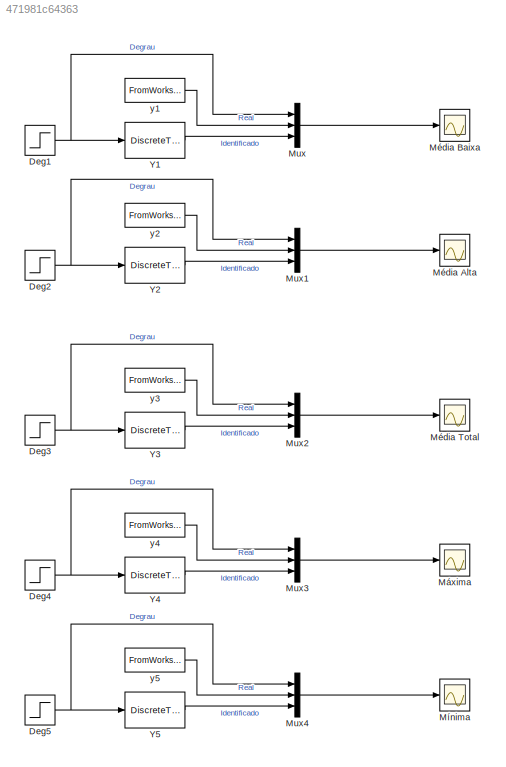
MODEL slx_471981c64363
KIND model
CONFIG AbsTol = auto
CONFIG FixedStep = auto
CONFIG MaxStep = auto
CONFIG MinStep = auto
CONFIG RelTol = 1e-3
CONFIG SampleTimeConstraint = Unconstrained
CONFIG Solver = ode45
CONFIG SolverMode = Auto
CONFIG SolverName = ode45
CONFIG StartTime = 0.0
CONFIG StopTime = t(end)
BLOCK [Step] Deg1
  After = 10
  SampleTime = T
  Time = 6*T
BLOCK [Step] Deg2
  After = 10
  SampleTime = T
  Time = 6*T
BLOCK [Step] Deg3
  After = 10
  SampleTime = T
  Time = 6*T
BLOCK [Step] Deg4
  After = 10
  SampleTime = T
  Time = 6*T
BLOCK [Step] Deg5
  After = 10
  SampleTime = T
  Time = 6*T
BLOCK [Mux] Mux
  DisplayOption = bar
  Inputs = 3
  Ports = [3, 1]
BLOCK [Mux] Mux1
  DisplayOption = bar
  Inputs = 3
  Ports = [3, 1]
BLOCK [Mux] Mux2
  DisplayOption = bar
  Inputs = 3
  Ports = [3, 1]
BLOCK [Mux] Mux3
  DisplayOption = bar
  Inputs = 3
  Ports = [3, 1]
BLOCK [Mux] Mux4
  DisplayOption = bar
  Inputs = 3
  Ports = [3, 1]
BLOCK [Scope] Máxima
  Floating = off
  LegendLocations = 0.063167     0.78604     0.14469     0.11637
  NumInputPorts = 1
  Ports = [1]
  SaveName = ScopeData3
  ShowLegends = on
BLOCK [Scope] Média Alta
  Floating = off
  LegendLocations = 0.063329     0.78652     0.14506      0.1161
  NumInputPorts = 1
  Ports = [1]
  SaveName = ScopeData2
  ShowLegends = on
BLOCK [Scope] Média Baixa 
  Floating = off
  LegendLocations = 0.063167     0.78555     0.14469     0.11663
  NumInputPorts = 1
  Ports = [1]
  SaveName = ScopeData1
  ShowLegends = on
BLOCK [Scope] Média Total
  Floating = off
  LegendLocations = 0.063248     0.78652     0.14487      0.1161
  NumInputPorts = 1
  Ports = [1]
  ShowLegends = on
BLOCK [Scope] Mínima
  Floating = off
  LegendLocations = 0.063329     0.78652     0.14506      0.1161
  NumInputPorts = 1
  Ports = [1]
  SaveName = ScopeData4
  ShowLegends = on
BLOCK [DiscreteTransferFcn] Y1
  Denominator = Y1.den{1}
  InputPortMap = u0
  Numerator = Y1.num{1}
  Ports = [1, 1]
  SampleTime = T
BLOCK [DiscreteTransferFcn] Y2
  Denominator = Y2.den{1}
  InputPortMap = u0
  Numerator = Y2.num{1}
  Ports = [1, 1]
  SampleTime = T
BLOCK [DiscreteTransferFcn] Y3
  Denominator = Y3.den{1}
  InputPortMap = u0
  Numerator = Y3.num{1}
  Ports = [1, 1]
  SampleTime = T
BLOCK [DiscreteTransferFcn] Y4
  Denominator = Y4.den{1}
  InputPortMap = u0
  Numerator = Y4.num{1}
  Ports = [1, 1]
  SampleTime = T
BLOCK [DiscreteTransferFcn] Y5
  Denominator = Y5.den{1}
  InputPortMap = u0
  Numerator = Y5.num{1}
  Ports = [1, 1]
  SampleTime = T
BLOCK [FromWorkspace] y1
  SampleTime = T
  VariableName = y1_data
  ZeroCross = on
BLOCK [FromWorkspace] y2
  SampleTime = T
  VariableName = y2_data
  ZeroCross = on
BLOCK [FromWorkspace] y3
  SampleTime = T
  VariableName = y3_data
  ZeroCross = on
BLOCK [FromWorkspace] y4
  SampleTime = T
  VariableName = y4_data
  ZeroCross = on
BLOCK [FromWorkspace] y5
  SampleTime = T
  VariableName = y5_data
  ZeroCross = on
NET Deg1:1 -> Mux:1, Y1:1
NET Deg2:1 -> Mux1:1, Y2:1
NET Deg3:1 -> Mux2:1, Y3:1
NET Deg4:1 -> Mux3:1, Y4:1
NET Deg5:1 -> Mux4:1, Y5:1
LINE Mux1:1 -> Média Alta:1
LINE Mux2:1 -> Média Total:1
LINE Mux3:1 -> Máxima:1
LINE Mux4:1 -> Mínima:1
LINE Mux:1 -> Média Baixa :1
LINE Y1:1 -> Mux:3
LINE Y2:1 -> Mux1:3
LINE Y3:1 -> Mux2:3
LINE Y4:1 -> Mux3:3
LINE Y5:1 -> Mux4:3
LINE y1:1 -> Mux:2
LINE y2:1 -> Mux1:2
LINE y3:1 -> Mux2:2
LINE y4:1 -> Mux3:2
LINE y5:1 -> Mux4:2
note: NET lines group one-source signal fan-out (src -> all destinations, sorted); 1:1 wires keep LINE
